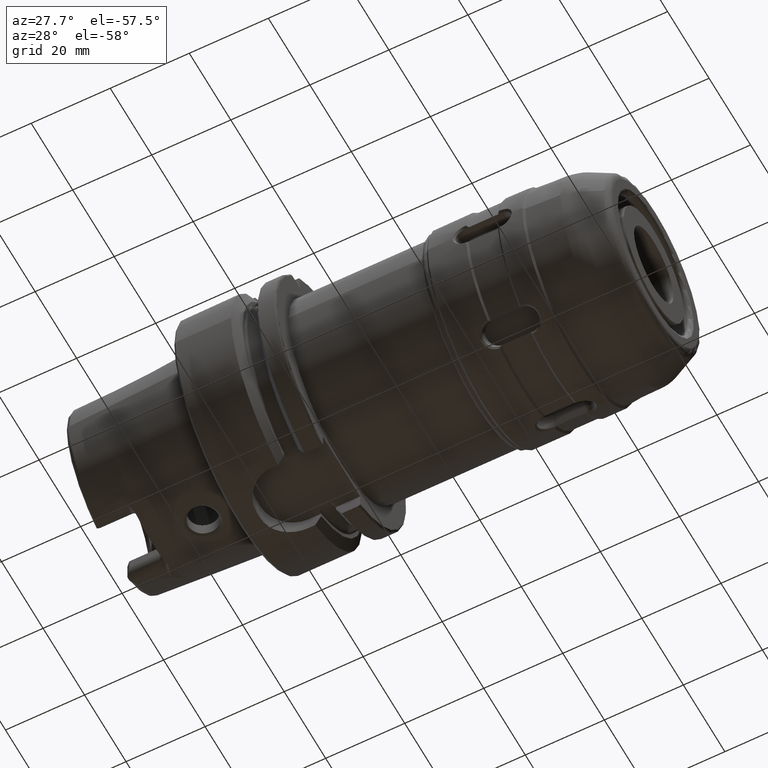
[diagram: clean part render]
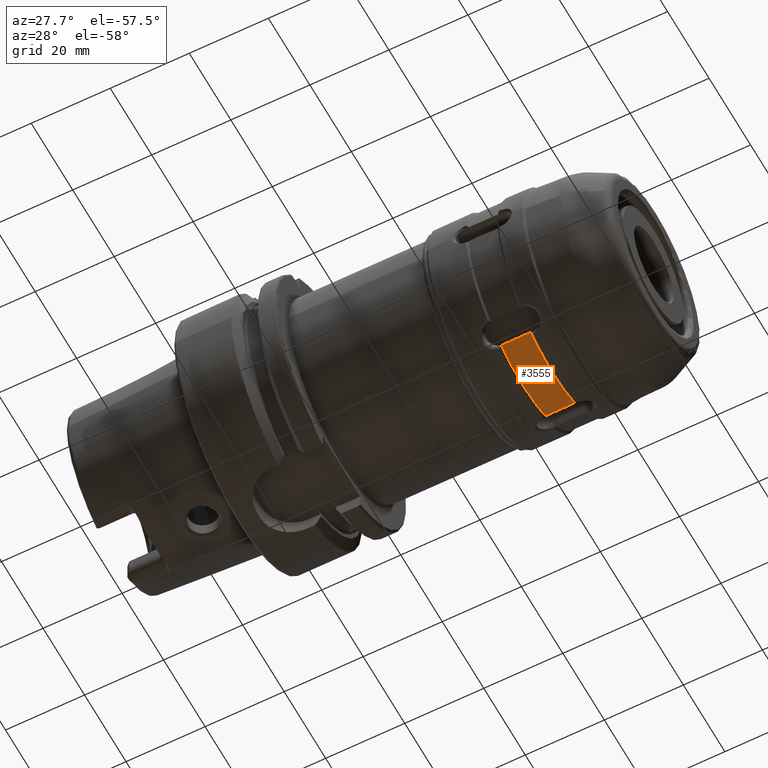
[diagram: same view with one face highlighted and labeled with its STEP entity id]
A machine part, auxiliary view. The second image highlights one B-rep face of the part: STEP entity #3555.
In plain terms, the highlighted cylindrical surface (partial cylindrical patch) has radius 26.5 mm, axis along (1, -0, 0).
Its self-contained STEP definition (entity closure, byte-faithful):
#527=FACE_OUTER_BOUND('',#745,.T.);
#745=EDGE_LOOP('',(#3164,#3165,#3166,#3167));
#894=LINE('',#6652,#1075);
#936=LINE('',#8164,#1117);
#1075=VECTOR('',#4662,10.);
#1117=VECTOR('',#4800,10.);
#1271=CIRCLE('',#3913,26.5);
#1285=CIRCLE('',#3930,26.5);
#1550=VERTEX_POINT('',#6647);
#1551=VERTEX_POINT('',#6651);
#1558=VERTEX_POINT('',#6691);
#1586=VERTEX_POINT('',#7030);
#2013=EDGE_CURVE('',#1551,#1550,#894,.T.);
#2022=EDGE_CURVE('',#1558,#1550,#1271,.T.);
#2055=EDGE_CURVE('',#1586,#1551,#1285,.T.);
#2147=EDGE_CURVE('',#1558,#1586,#936,.T.);
#3164=ORIENTED_EDGE('',*,*,#2013,.T.);
#3165=ORIENTED_EDGE('',*,*,#2022,.F.);
#3166=ORIENTED_EDGE('',*,*,#2147,.T.);
#3167=ORIENTED_EDGE('',*,*,#2055,.T.);
#3377=CYLINDRICAL_SURFACE('',#3986,26.5);
#3555=ADVANCED_FACE('',(#527),#3377,.T.);
#3913=AXIS2_PLACEMENT_3D('',#6695,#4671,#4672);
#3930=AXIS2_PLACEMENT_3D('',#7031,#4707,#4708);
#3986=AXIS2_PLACEMENT_3D('',#8242,#4865,#4866);
#4662=DIRECTION('',(1.,0.,0.));
#4671=DIRECTION('center_axis',(1.,0.,0.));
#4672=DIRECTION('ref_axis',(0.,0.,-1.));
#4707=DIRECTION('center_axis',(1.,0.,0.));
#4708=DIRECTION('ref_axis',(0.,0.,-1.));
#4800=DIRECTION('',(-1.,0.,0.));
#4865=DIRECTION('center_axis',(1.,0.,0.));
#4866=DIRECTION('ref_axis',(0.,1.,0.));
#6647=CARTESIAN_POINT('',(19.4,10.5667443343282,-24.3021380576472));
#6651=CARTESIAN_POINT('',(12.,10.5667443343282,-24.3021380576472));
#6652=CARTESIAN_POINT('',(15.7,10.5667443343282,-24.3021380576472));
#6691=CARTESIAN_POINT('',(19.4,-10.5667443343283,-24.3021380576471));
#6695=CARTESIAN_POINT('Origin',(19.4,0.,0.));
#7030=CARTESIAN_POINT('',(12.,-10.5667443343283,-24.3021380576471));
#7031=CARTESIAN_POINT('Origin',(12.,0.,0.));
#8164=CARTESIAN_POINT('',(15.7,-10.5667443343283,-24.3021380576471));
#8242=CARTESIAN_POINT('Origin',(15.7,0.,0.));